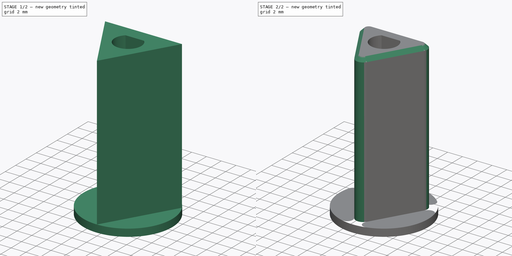
[diagram: build sequence overview — one tinted view per stage of 2, left to right]
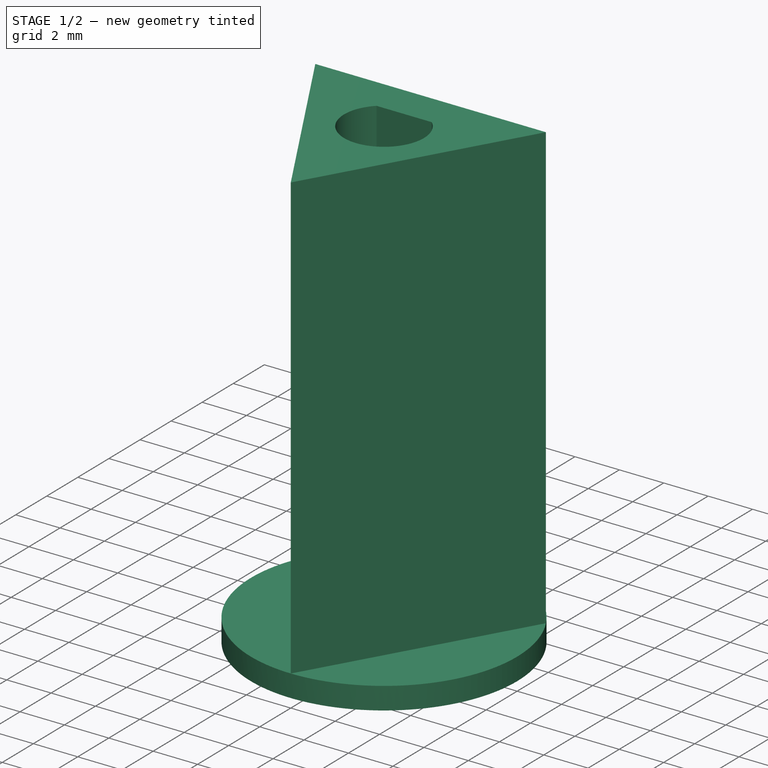
[diagram: stage 1 of 2 — iso view after this stage's code; geometry added in this stage tinted green]
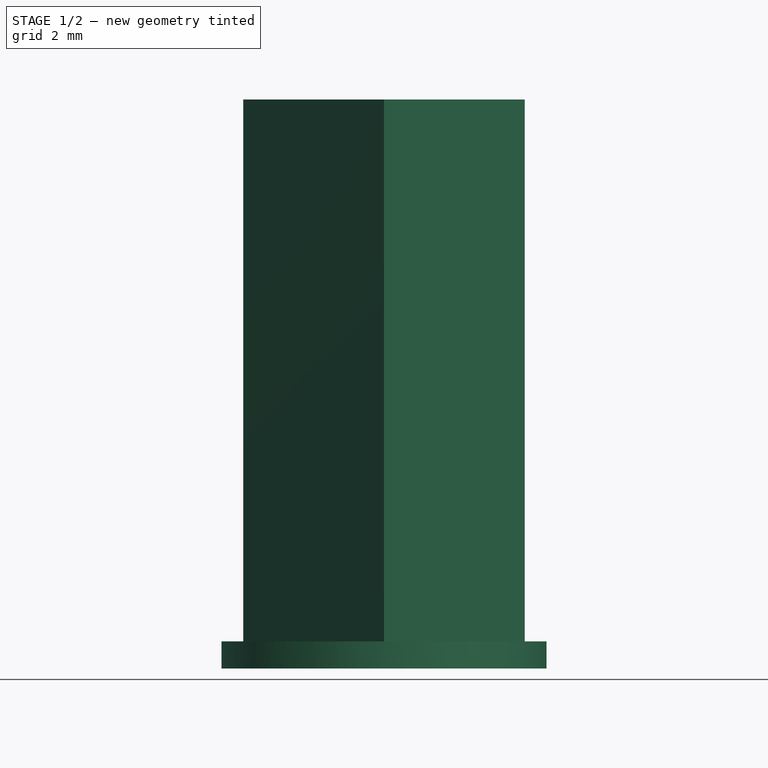
[diagram: stage 1 of 2 — front view after this stage's code; geometry added in this stage tinted green]
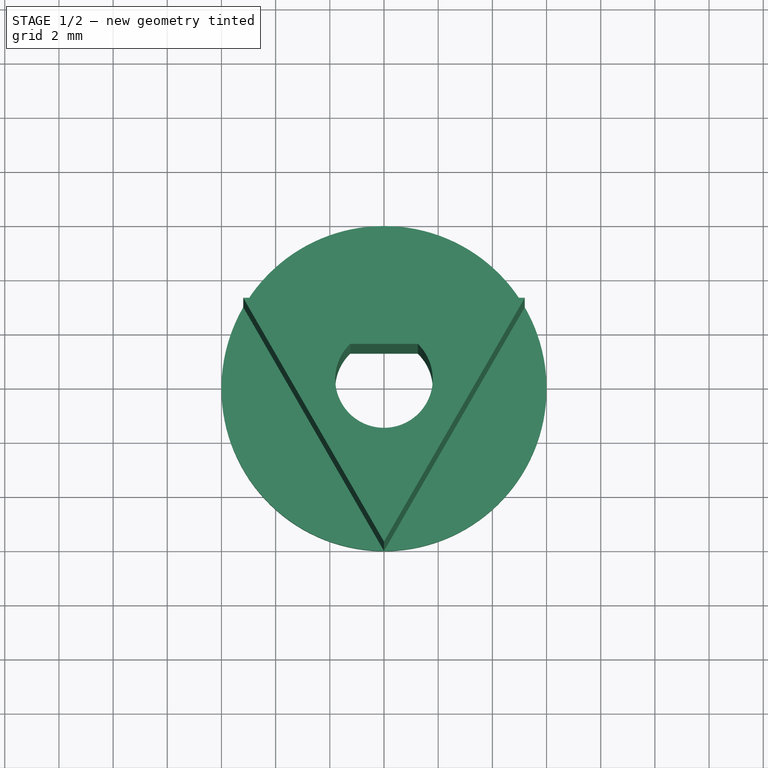
[diagram: stage 1 of 2 — top view after this stage's code; geometry added in this stage tinted green]
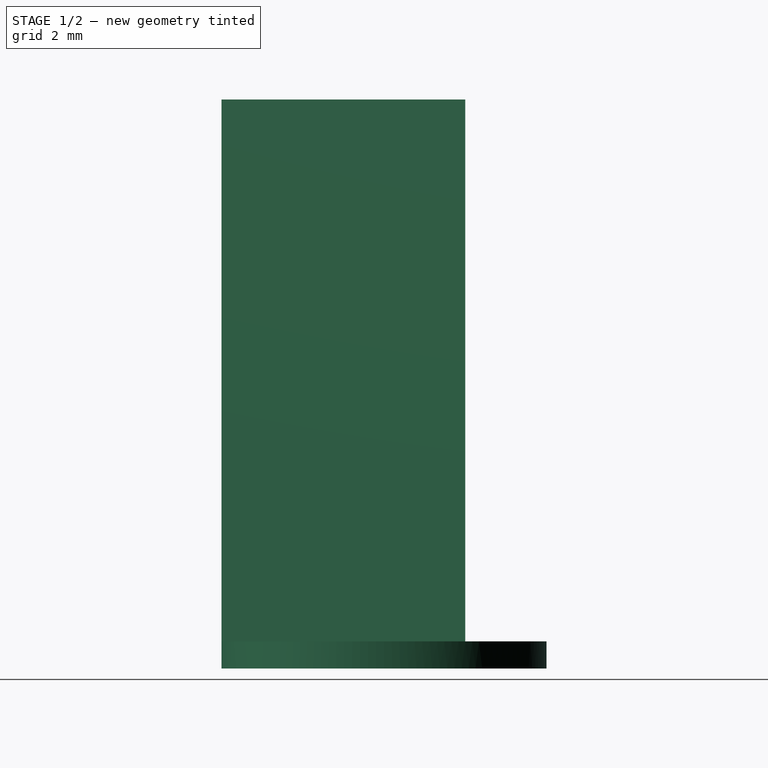
[diagram: stage 1 of 2 — right view after this stage's code; geometry added in this stage tinted green]
FCSTD DOCUMENT  (FreeCAD 0.18.4R)
Label: spool-plug
License: All rights reserved
LicenseURL: http://en.wikipedia.org/wiki/All_rights_reserved
objects: Sketcher::SketchObject×2, PartDesign::Pad×2, PartDesign::Fillet×1, PartDesign::Chamfer×1, PartDesign::Body×1
note: 9 computed .brp shape members not serialized (recipe doc carries the construction recipe); baked Part::Feature solids carry a one-line shape summary decoded from their .brp

FEATURE [Sketcher::SketchObject] Sketch
  MapMode = 5
  Support = -> [XY_Plane]
  sketch-geometry (3):
    g0: Circle CenterX=0 CenterY=0 CenterZ=0 NormalX=0 NormalY=0 NormalZ=1 AngleXU=0 Radius=6
    g1: ArcOfCircle CenterX=0 CenterY=0 CenterZ=0 NormalX=0 NormalY=0 NormalZ=1 AngleXU=0 Radius=1.8 StartAngle=2.33458 EndAngle=7.0902
    g2: LineSegment StartX=-1.24499 StartY=1.3 StartZ=0 EndX=1.24499 EndY=1.3 EndZ=0
  constraints (8):
    c: Coincident(g0,g-1)
    c: Coincident(g1,g0)
    c: Coincident(g2,g1)
    c: Coincident(g2,g1)
    c: Horizontal(g2)
    c: Diameter(g1) = 3.6
    c: DistanceY(g0,g1) = 1.3
    c: Diameter(g0) = 12
FEATURE [PartDesign::Pad] Pad
  Length = 1
  Length2 = 100
  Profile = -> Sketch
  Reversed = true
  Type = 0
FEATURE [Sketcher::SketchObject] Sketch001
  MapMode = 5
  Support = -> [XY_Plane]
  sketch-geometry (6):
    g0: Circle [constr] CenterX=0 CenterY=0 CenterZ=0 NormalX=0 NormalY=0 NormalZ=1 AngleXU=0 Radius=6
    g1: LineSegment StartX=-5.19615 StartY=3 StartZ=0 EndX=5.19615 EndY=3 EndZ=0
    g2: LineSegment StartX=5.19615 StartY=3 StartZ=0 EndX=0 EndY=-6 EndZ=0
    g3: LineSegment StartX=0 StartY=-6 StartZ=0 EndX=-5.19615 EndY=3 EndZ=0
    g4: ArcOfCircle CenterX=0 CenterY=0 CenterZ=0 NormalX=0 NormalY=0 NormalZ=1 AngleXU=0 Radius=1.8 StartAngle=2.33458 EndAngle=7.0902
    g5: LineSegment StartX=-1.24499 StartY=1.3 StartZ=0 EndX=1.24499 EndY=1.3 EndZ=0
  constraints (17):
    c: Coincident(g0,g-1)
    c: Diameter(g0) = 12
    c: PointOnObject(g1,g0)
    c: PointOnObject(g1,g0)
    c: Horizontal(g1)
    c: Coincident(g1,g2)
    c: PointOnObject(g2,g-2)
    c: Coincident(g2,g3)
    c: PointOnObject(g2,g0)
    c: Angle(g2,g3) = 1.0472
    c: Coincident(g3,g1)
    c: Coincident(g4,g-1)
    c: Coincident(g5,g4)
    c: Coincident(g5,g4)
    c: Horizontal(g5)
    c: DistanceY(g4,g4) = 1.3
    c: Diameter(g4) = 3.6
FEATURE [PartDesign::Pad] Pad001
  BaseFeature = -> Pad
  Length = 20
  Length2 = 100
  Profile = -> Sketch001
  Type = 0
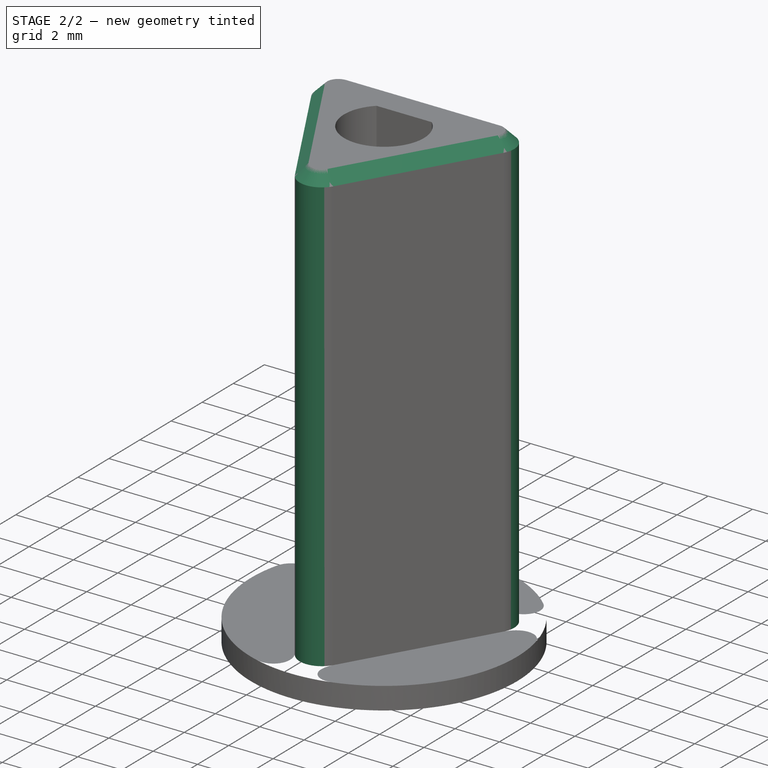
[diagram: stage 2 of 2 — iso view after this stage's code; geometry added in this stage tinted green]
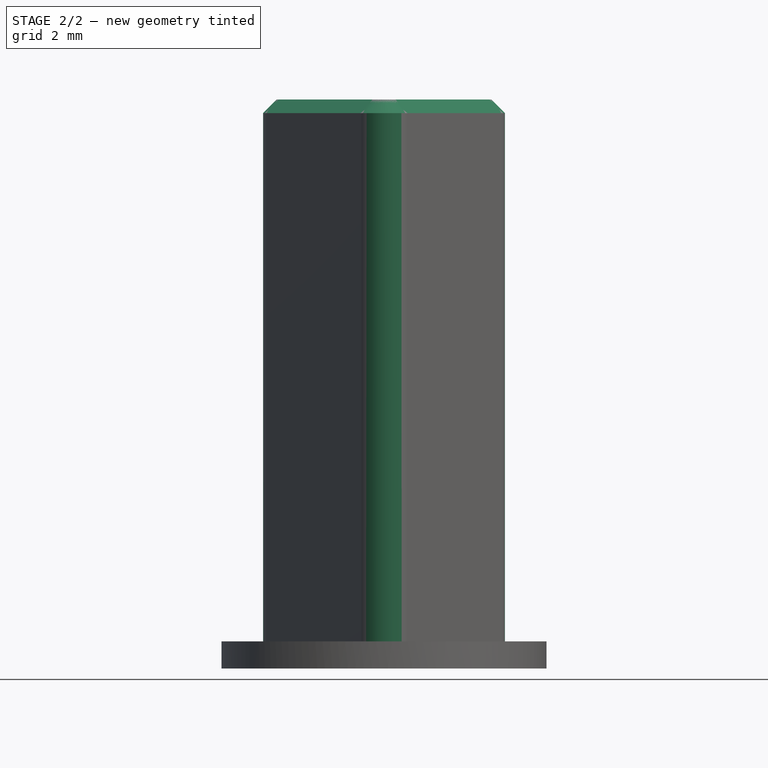
[diagram: stage 2 of 2 — front view after this stage's code; geometry added in this stage tinted green]
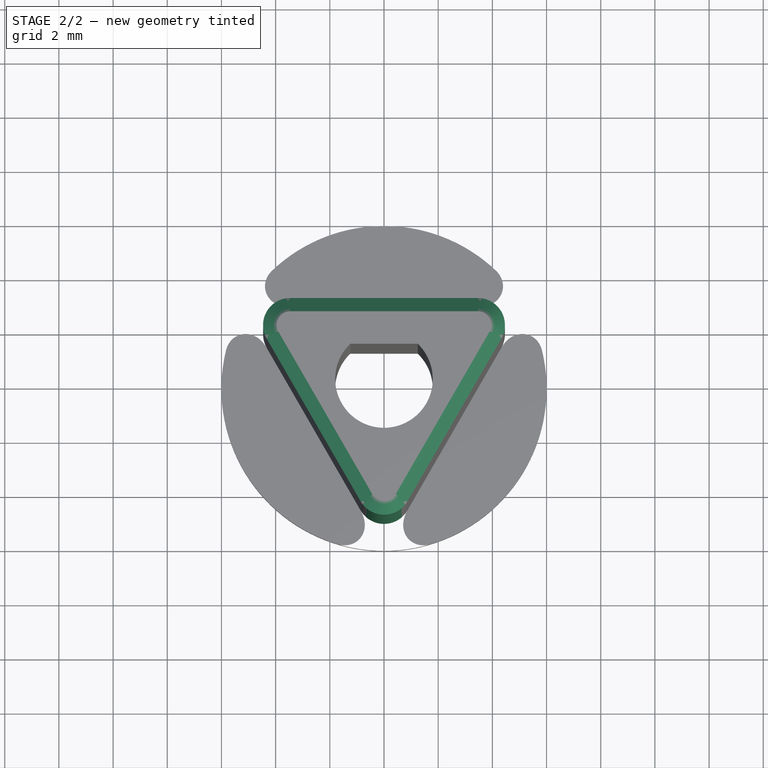
[diagram: stage 2 of 2 — top view after this stage's code; geometry added in this stage tinted green]
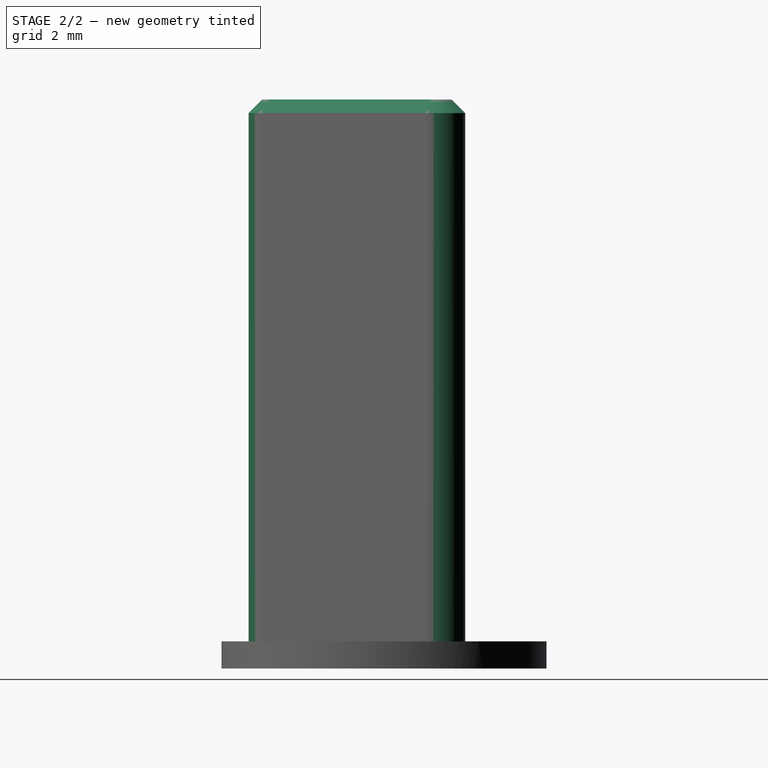
[diagram: stage 2 of 2 — right view after this stage's code; geometry added in this stage tinted green]
FEATURE [PartDesign::Fillet] Fillet
  Base = -> Pad001 [Edge13,Edge12,Edge15]
  BaseFeature = -> Pad001
  Radius = 1
FEATURE [PartDesign::Chamfer] Chamfer
  Base = -> Fillet [Edge38]
  BaseFeature = -> Fillet
  Size = 0.5
FEATURE [PartDesign::Body] Body
  Group = -> [Sketch,Pad,Sketch001,Pad001,Fillet,Chamfer]
  Origin = -> Origin
  Tip = -> Chamfer
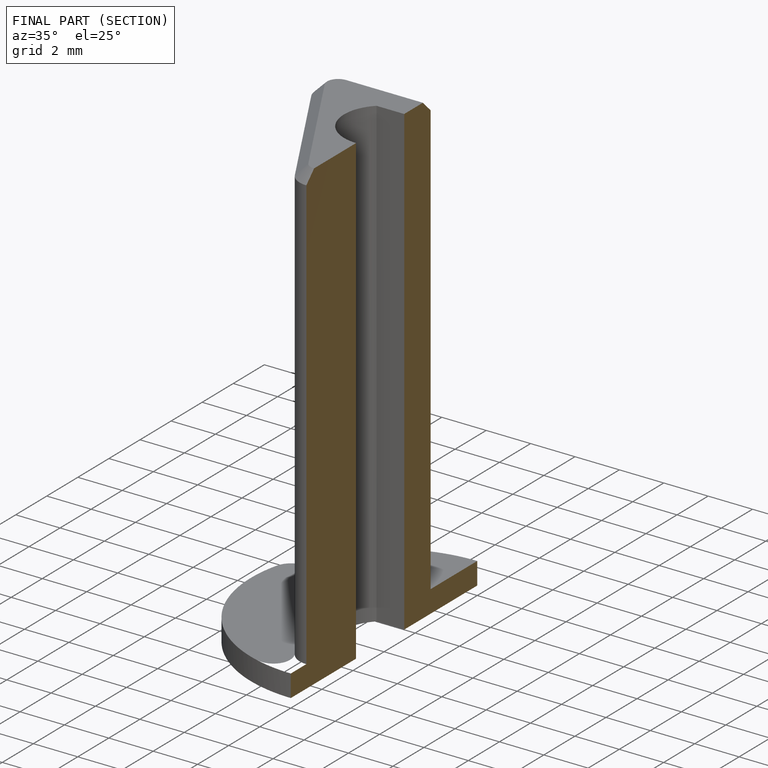
[diagram: finished part — half-section view (interior)]
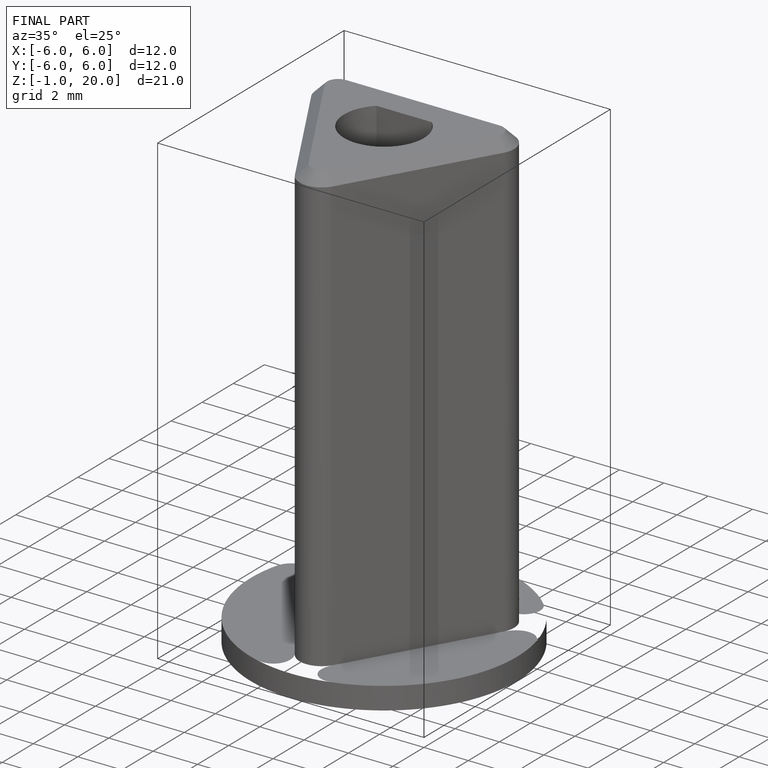
[diagram: finished part — iso view with bounding-box wireframe]
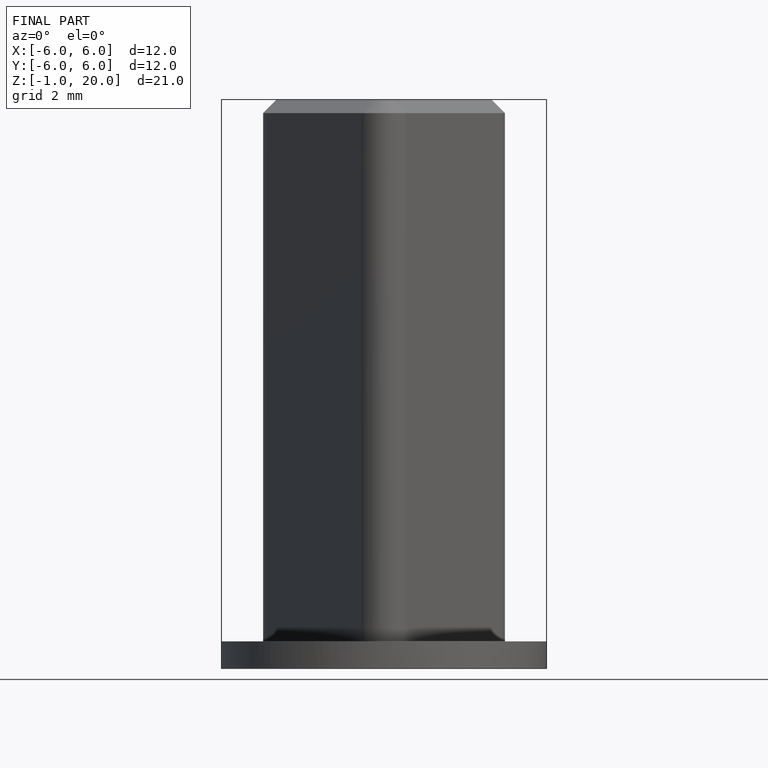
[diagram: finished part — front view with bounding-box wireframe]
